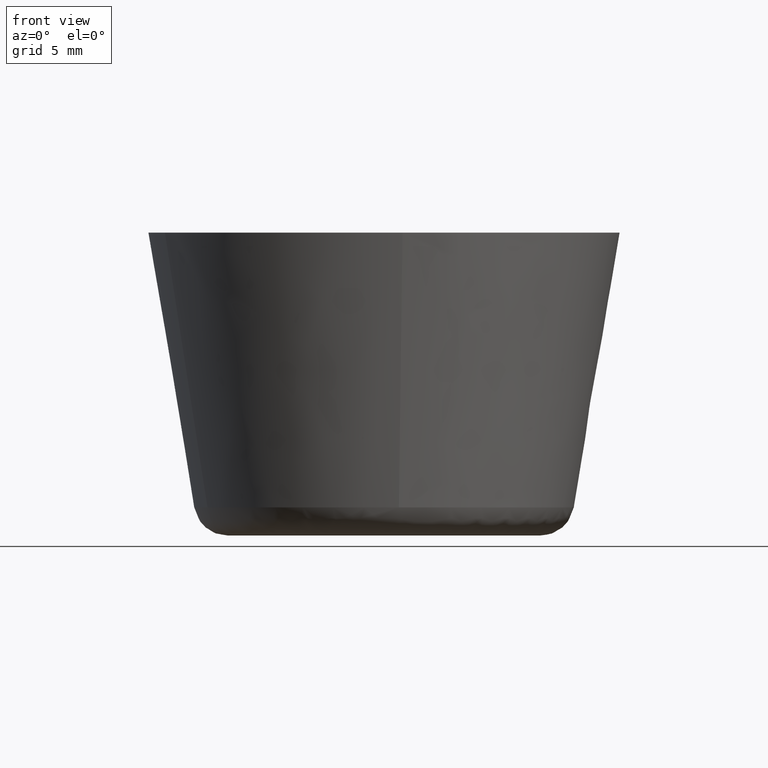
[diagram: clean part render]
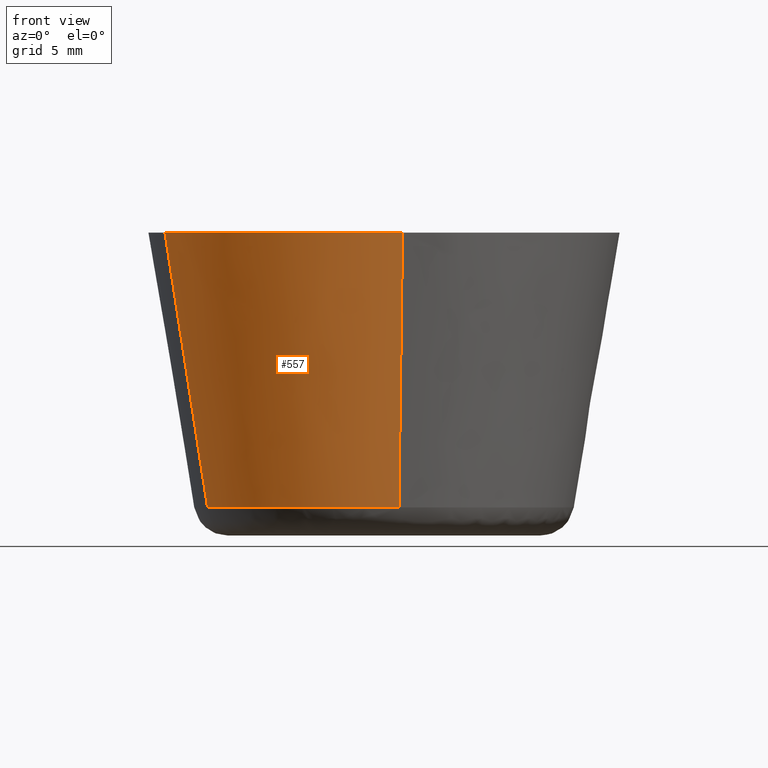
[diagram: same view with one face highlighted and labeled with its STEP entity id]
A machine part, front view. The second image highlights one B-rep face of the part: STEP entity #557.
In plain terms, the highlighted face is a freeform B-spline surface patch.
Its self-contained STEP definition (entity closure, byte-faithful):
#493=CARTESIAN_POINT('',(-10.424242613753185,-4.124368650347435,1.262982049999999));
#494=CARTESIAN_POINT('',(-7.377175036655479,-11.825758699826128,1.262982049999999));
#495=CARTESIAN_POINT('',(0.879565484740408,-11.175939127984281,1.262982049999999));
#496=CARTESIAN_POINT('',(-13.082948358435452,-5.176289929443425,18.418425448750007));
#497=CARTESIAN_POINT('',(-9.258725416498445,-14.841921480705022,18.418425448750003));
#498=CARTESIAN_POINT('',(1.103898886576073,-14.026365260870779,18.418425448750011));
#506=(BOUNDED_SURFACE()B_SPLINE_SURFACE(2,1,((#493,#496),(#494,#497),(#495,#498)),.UNSPECIFIED.,.F.,.F.,.U.)B_SPLINE_SURFACE_WITH_KNOTS((3,3),(2,2),(0.0,18.522088064509820),(0.0,17.392081325187529),.UNSPECIFIED.)GEOMETRIC_REPRESENTATION_ITEM()RATIONAL_B_SPLINE_SURFACE(((0.906274169979695,0.906274169979695),(0.765685424949238,0.765685424949238),(1.0,1.0)))REPRESENTATION_ITEM('')SURFACE());
#507=CARTESIAN_POINT('',(0.884897899458109,-11.243766081972220,1.671199555386862));
#508=VERTEX_POINT('',#507);
#509=CARTESIAN_POINT('',(-10.487508994757830,-4.149393498292801,1.671197246637555));
#510=VERTEX_POINT('',#509);
#511=CARTESIAN_POINT('',(0.884897899458109,-11.243766081972211,1.671199555386862));
#512=CARTESIAN_POINT('',(0.443131959441936,-11.278533596869487,1.671199493996162));
#513=CARTESIAN_POINT('',(0.000000010031340,-11.278533600087320,1.671199429236200));
#514=CARTESIAN_POINT('',(-7.666857842699763,-11.278533655760715,1.671198308790197));
#515=CARTESIAN_POINT('',(-10.487508994757830,-4.149393498292801,1.671197246637556));
#523=(BOUNDED_CURVE()B_SPLINE_CURVE(2,(#511,#512,#513,#514,#515),.UNSPECIFIED.,.F.,.U.)B_SPLINE_CURVE_WITH_KNOTS((3,2,3),(0.736331386733303,0.750000000000000,0.937532635559443),.UNSPECIFIED.)CURVE()GEOMETRIC_REPRESENTATION_ITEM()RATIONAL_B_SPLINE_CURVE((0.969723535857136,0.983986223454404,1.0,0.780291850953698,0.890203287863716))REPRESENTATION_ITEM(''));
#524=EDGE_CURVE('',#508,#510,#523,.T.);
#525=ORIENTED_EDGE('',*,*,#524,.F.);
#526=CARTESIAN_POINT('',(1.098419267726848,-13.956842715611909,17.999996459165441));
#527=VERTEX_POINT('',#526);
#528=CARTESIAN_POINT('',(0.884897899458109,-11.243766081972220,1.671199555386862));
#529=CARTESIAN_POINT('',(1.098419267726848,-13.956842715611909,17.999996459165441));
#530=QUASI_UNIFORM_CURVE('',1,(#528,#529),.UNSPECIFIED.,.F.,.U.);
#531=EDGE_CURVE('',#508,#527,#530,.T.);
#532=ORIENTED_EDGE('',*,*,#531,.T.);
#533=CARTESIAN_POINT('',(-13.018103096299679,-5.150628476411466,17.999996127413549));
#534=VERTEX_POINT('',#533);
#535=CARTESIAN_POINT('',(1.098419267726848,-13.956842715611915,17.999996459165434));
#536=CARTESIAN_POINT('',(0.550057437291581,-13.999999421007532,17.999996450344003));
#537=CARTESIAN_POINT('',(-0.000000010978584,-13.999999430849259,17.999996441038441));
#538=CARTESIAN_POINT('',(-9.516838777235122,-13.999999601126266,17.999996280037823));
#539=CARTESIAN_POINT('',(-13.018103096299678,-5.150628476411466,17.999996127413549));
#547=(BOUNDED_CURVE()B_SPLINE_CURVE(2,(#535,#536,#537,#538,#539),.UNSPECIFIED.,.F.,.U.)B_SPLINE_CURVE_WITH_KNOTS((3,2,3),(0.736331399213855,0.750000000000000,0.937532605533869),.UNSPECIFIED.)CURVE()GEOMETRIC_REPRESENTATION_ITEM()RATIONAL_B_SPLINE_CURVE((0.969723561903116,0.983986238076279,1.0,0.780291886130846,0.890203252668208))REPRESENTATION_ITEM(''));
#548=EDGE_CURVE('',#527,#534,#547,.T.);
#549=ORIENTED_EDGE('',*,*,#548,.T.);
#550=CARTESIAN_POINT('',(-10.487508994757830,-4.149393498292801,1.671197246637555));
#551=CARTESIAN_POINT('',(-13.018103096299679,-5.150628476411466,17.999996127413549));
#552=QUASI_UNIFORM_CURVE('',1,(#550,#551),.UNSPECIFIED.,.F.,.U.);
#553=EDGE_CURVE('',#510,#534,#552,.T.);
#554=ORIENTED_EDGE('',*,*,#553,.F.);
#555=EDGE_LOOP('',(#525,#532,#549,#554));
#556=FACE_OUTER_BOUND('',#555,.T.);
#557=ADVANCED_FACE('',(#556),#506,.T.);